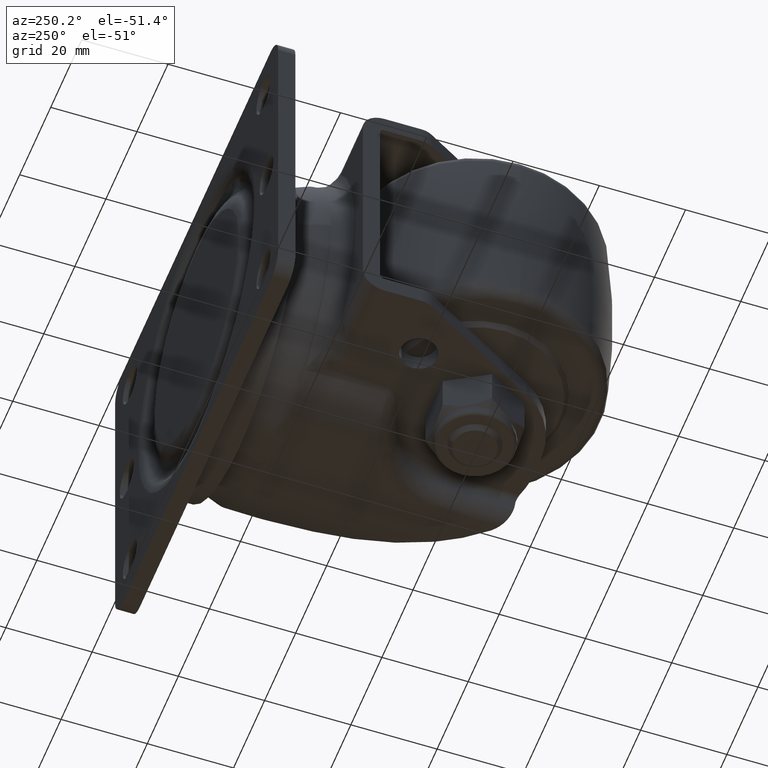
[diagram: clean part render]
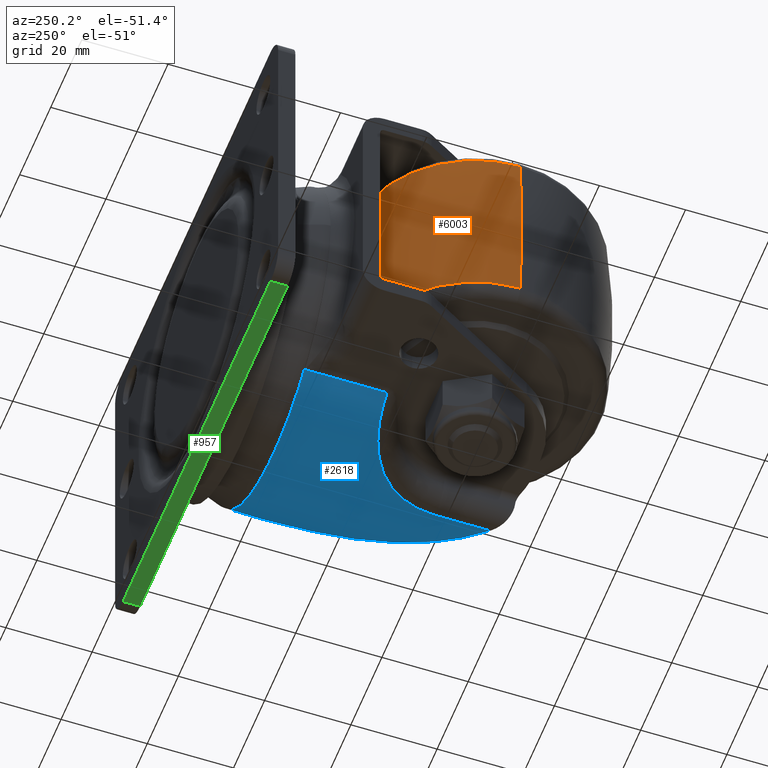
[diagram: same view with three faces highlighted in distinct colors, each labeled with its STEP entity id]
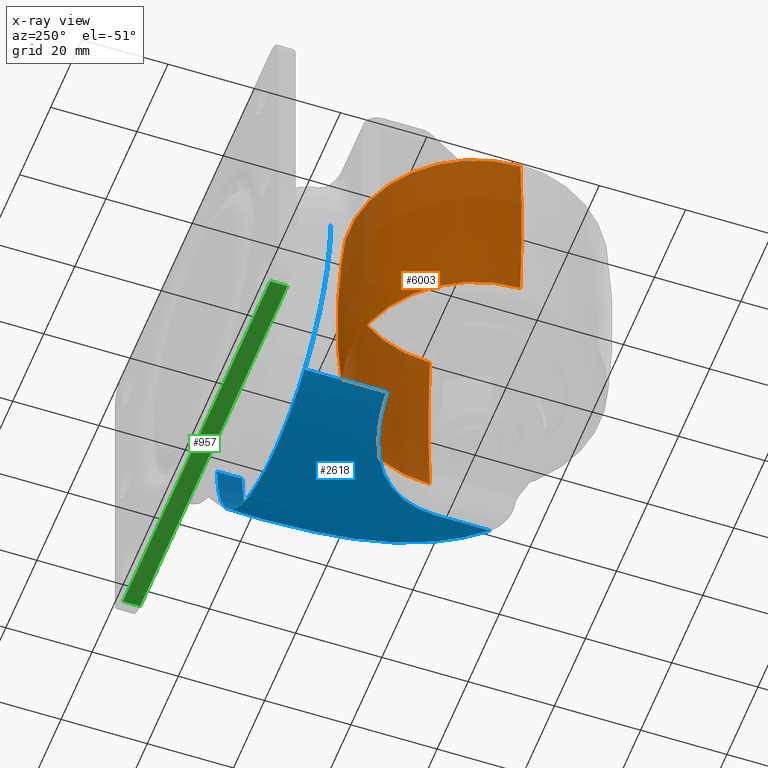
[diagram: x-ray of the same camera — body ghosted, the three highlighted faces saturated]
A machine part, auxiliary view with three faces highlighted in distinct colors.
The next image is the same camera in x-ray (body ghosted, the three faces saturated) — at least one of them is partly hidden behind the body in this view.
Their STEP definitions:

[orange] entity #6003 — the highlighted toroidal blend (fillet) surface has major radius 220 mm and minor (blend) radius 250 mm.
#67 = DIRECTION ( 'NONE',  ( 1.000000000000000000, 0.000000000000000000, 0.000000000000000000 ) ) ;
#163 = DIRECTION ( 'NONE',  ( 0.000000000000000000, 0.000000000000000000, 1.000000000000000000 ) ) ;
#311 = EDGE_CURVE ( 'NONE', #6330, #5345, #5548, .T. ) ;
#781 = AXIS2_PLACEMENT_3D ( 'NONE', #5704, #3207, #3275 ) ;
#887 = EDGE_CURVE ( 'NONE', #2490, #5345, #3988, .T. ) ;
#1644 = AXIS2_PLACEMENT_3D ( 'NONE', #3081, #163, #67 ) ;
#1677 = FACE_OUTER_BOUND ( 'NONE', #2428, .T. ) ;
#1829 = DIRECTION ( 'NONE',  ( -1.000000000000000000, 0.000000000000000000, 0.000000000000000000 ) ) ;
#1907 = DIRECTION ( 'NONE',  ( 0.000000000000000000, 0.000000000000000000, -1.000000000000000000 ) ) ;
#2025 = DIRECTION ( 'NONE',  ( 0.000000000000000000, -1.000000000000000000, 0.000000000000000000 ) ) ;
#2256 = DIRECTION ( 'NONE',  ( -1.224646799147353207E-16, 1.000000000000000000, 0.000000000000000000 ) ) ;
#2358 = CARTESIAN_POINT ( 'NONE',  ( -220.0000000000000000, -2.694222958124177046E-14, 0.000000000000000000 ) ) ;
#2428 = EDGE_LOOP ( 'NONE', ( #4022, #2977, #3820, #5814 ) ) ;
#2490 = VERTEX_POINT ( 'NONE', #3921 ) ;
#2574 = AXIS2_PLACEMENT_3D ( 'NONE', #2358, #2256, #4275 ) ;
#2583 = TOROIDAL_SURFACE ( 'NONE', #781, -220.0000000000000000, 250.0000000000000000 ) ;
#2650 = CARTESIAN_POINT ( 'NONE',  ( -29.09480603460475834, 0.000000000000000000, -21.25506072874494023 ) ) ;
#2794 = DIRECTION ( 'NONE',  ( -0.000000000000000000, -0.000000000000000000, -1.000000000000000000 ) ) ;
#2804 = VERTEX_POINT ( 'NONE', #5068 ) ;
#2977 = ORIENTED_EDGE ( 'NONE', *, *, #5455, .T. ) ;
#3081 = CARTESIAN_POINT ( 'NONE',  ( 0.000000000000000000, 0.000000000000000000, -21.25506072874494023 ) ) ;
#3207 = DIRECTION ( 'NONE',  ( -0.000000000000000000, -0.000000000000000000, -1.000000000000000000 ) ) ;
#3275 = DIRECTION ( 'NONE',  ( -1.000000000000000000, 0.000000000000000000, 0.000000000000000000 ) ) ;
#3820 = ORIENTED_EDGE ( 'NONE', *, *, #887, .T. ) ;
#3921 = CARTESIAN_POINT ( 'NONE',  ( 29.09480603460475834, 3.563086108209180818E-15, -21.25506072874494023 ) ) ;
#3988 = CIRCLE ( 'NONE', #1644, 29.09480603460475834 ) ;
#4022 = ORIENTED_EDGE ( 'NONE', *, *, #4072, .T. ) ;
#4072 = EDGE_CURVE ( 'NONE', #6330, #2804, #5085, .T. ) ;
#4178 = AXIS2_PLACEMENT_3D ( 'NONE', #4547, #2025, #1907 ) ;
#4239 = CARTESIAN_POINT ( 'NONE',  ( 0.000000000000000000, 0.000000000000000000, 21.25506072874493313 ) ) ;
#4275 = DIRECTION ( 'NONE',  ( -1.000000000000000000, -1.224646799147353207E-16, 0.000000000000000000 ) ) ;
#4547 = CARTESIAN_POINT ( 'NONE',  ( 220.0000000000000000, 0.000000000000000000, 0.000000000000000000 ) ) ;
#4587 = CIRCLE ( 'NONE', #2574, 249.9999999999999716 ) ;
#5068 = CARTESIAN_POINT ( 'NONE',  ( 29.09480603460475834, 3.563086108209180818E-15, 21.25506072874493313 ) ) ;
#5085 = CIRCLE ( 'NONE', #6235, 29.09480603460475834 ) ;
#5345 = VERTEX_POINT ( 'NONE', #2650 ) ;
#5455 = EDGE_CURVE ( 'NONE', #2804, #2490, #4587, .T. ) ;
#5548 = CIRCLE ( 'NONE', #4178, 250.0000000000000000 ) ;
#5704 = CARTESIAN_POINT ( 'NONE',  ( 0.000000000000000000, 0.000000000000000000, 0.000000000000000000 ) ) ;
#5814 = ORIENTED_EDGE ( 'NONE', *, *, #311, .F. ) ;
#5928 = CARTESIAN_POINT ( 'NONE',  ( -29.09480603460475834, 0.000000000000000000, 21.25506072874493313 ) ) ;
#6003 = ADVANCED_FACE ( 'NONE', ( #1677 ), #2583, .T. ) ;
#6235 = AXIS2_PLACEMENT_3D ( 'NONE', #4239, #2794, #1829 ) ;
#6330 = VERTEX_POINT ( 'NONE', #5928 ) ;

[blue] entity #2618 — the highlighted cylindrical surface (partial cylindrical patch) has radius 36.5 mm, axis along (-0, 1, -0).
#6 = CARTESIAN_POINT ( 'NONE',  ( 16.07858031296348145, 16.19666993373619590, -36.17268620276519897 ) ) ;
#20 = CIRCLE ( 'NONE', #3738, 36.50000000000000000 ) ;
#50 = CARTESIAN_POINT ( 'NONE',  ( 12.06962302102269469, 18.21111297559775721, -35.39790985149323888 ) ) ;
#79 = CARTESIAN_POINT ( 'NONE',  ( 53.30953679748899532, 33.29999999999999716, -17.00291570472260716 ) ) ;
#111 = CARTESIAN_POINT ( 'NONE',  ( 50.18746741257247379, 31.87541190361276833, -21.92012474138014966 ) ) ;
#291 = CARTESIAN_POINT ( 'NONE',  ( 53.69584931707314723, 33.29999999999999716, -16.22440869293081178 ) ) ;
#489 = CARTESIAN_POINT ( 'NONE',  ( 24.03577236283230079, 7.339083166733948893, -36.37468791609519769 ) ) ;
#519 = CARTESIAN_POINT ( 'NONE',  ( 25.63492063492064688, -12.70819972062991354, -36.20452334595756838 ) ) ;
#543 = CARTESIAN_POINT ( 'NONE',  ( 1.167719516289254855, 19.96886560162768731, -30.64197530864198527 ) ) ;
#553 = EDGE_CURVE ( 'NONE', #1093, #5749, #6277, .T. ) ;
#581 = CARTESIAN_POINT ( 'NONE',  ( 1.807776813859736764, 19.99972335466754458, -31.05623697823753204 ) ) ;
#608 = CARTESIAN_POINT ( 'NONE',  ( 51.34719766610444935, 32.72249436255683008, -20.28469685255298671 ) ) ;
#615 = CARTESIAN_POINT ( 'NONE',  ( 28.60772840384019133, -9.725358821918458574, -35.70613684958612311 ) ) ;
#673 = CARTESIAN_POINT ( 'NONE',  ( 48.79502898514481757, 29.29093898609247404, -23.65769142826410842 ) ) ;
#680 = CARTESIAN_POINT ( 'NONE',  ( 21.00000000000002487, 39.13393125268151351, 0.000000000000000000 ) ) ;
#753 = VERTEX_POINT ( 'NONE', #3022 ) ;
#798 = ORIENTED_EDGE ( 'NONE', *, *, #5674, .T. ) ;
#866 = CYLINDRICAL_SURFACE ( 'NONE', #4374, 36.50000000000000000 ) ;
#910 = CARTESIAN_POINT ( 'NONE',  ( 25.63492063492064688, -12.70819972062991354, -36.20452334595756838 ) ) ;
#971 = CARTESIAN_POINT ( 'NONE',  ( 22.60528691535320434, 9.994002002163488996, -36.47210162612018536 ) ) ;
#1007 = CARTESIAN_POINT ( 'NONE',  ( 17.92547641667669822, 14.91090828230018950, -36.37542169643199941 ) ) ;
#1066 = B_SPLINE_CURVE_WITH_KNOTS ( 'NONE', 3,
 ( #6022, #2508, #5506, #2533, #3097, #489, #2006, #971, #3003, #4532, #1510, #3539, #1007, #3036, #6, #2073, #2609, #5109, #5074, #4100, #50, #2037, #5577, #4066, #2571, #6090, #1579, #4591, #1080, #3069, #581, #543 ),
 .UNSPECIFIED., .F., .F.,
 ( 4, 2, 2, 2, 2, 2, 2, 2, 2, 2, 2, 2, 2, 2, 2, 4 ),
 ( -4.315124646492307647E-16, 0.004507232521810474943, 0.006760848782715928387, 0.009014465043621381832, 0.01352169756543228699, 0.01577531382633774737, 0.01802893008724320775, 0.02028254634814867161, 0.02140935447860140700, 0.02253616260905414587, 0.02478977886995961666, 0.02704339513086508745, 0.02929701139177056518, 0.03155062765267603597, 0.03380424391358151370, 0.03605786017448699143 ),
 .UNSPECIFIED. ) ;
#1080 = CARTESIAN_POINT ( 'NONE',  ( 3.785973885334423361, 19.97542536621987708, -32.19477468876621629 ) ) ;
#1093 = VERTEX_POINT ( 'NONE', #2327 ) ;
#1108 = CARTESIAN_POINT ( 'NONE',  ( 50.87938046682000248, 32.44030484143362258, -20.96768836816792003 ) ) ;
#1113 = CARTESIAN_POINT ( 'NONE',  ( 25.63492063492063266, 1.734723475976806897E-15, -36.20452334595757549 ) ) ;
#1135 = CARTESIAN_POINT ( 'NONE',  ( 49.96087227749997339, 31.64152930888657167, -22.21785788739545708 ) ) ;
#1251 = DIRECTION ( 'NONE',  ( -1.000000000000000000, -1.901066822988281703E-16, 0.000000000000000000 ) ) ;
#1300 = ORIENTED_EDGE ( 'NONE', *, *, #4325, .T. ) ;
#1302 = AXIS2_PLACEMENT_3D ( 'NONE', #680, #2703, #6066 ) ;
#1309 = DIRECTION ( 'NONE',  ( -1.067522139062650302E-16, 1.000000000000000000, -0.000000000000000000 ) ) ;
#1391 = CARTESIAN_POINT ( 'NONE',  ( 21.00000000000002487, 47.00000000000001421, 0.000000000000000000 ) ) ;
#1457 = EDGE_CURVE ( 'NONE', #4631, #4579, #1875, .T. ) ;
#1460 = B_SPLINE_CURVE_WITH_KNOTS ( 'NONE', 3,
 ( #2603, #79, #2100, #4125, #3191, #2633, #608, #1108, #3133, #111, #1135, #5201, #5140, #1637, #4652, #6150, #5666, #673 ),
 .UNSPECIFIED., .F., .F.,
 ( 4, 2, 2, 2, 2, 2, 2, 2, 4 ),
 ( 0.000000000000000000, 0.002576954735836691282, 0.003865432103755038224, 0.005153909471673385166, 0.006442386839591731675, 0.007730864207510078183, 0.008375102891469253172, 0.009019341575428425559, 0.01030781894334676513 ),
 .UNSPECIFIED. ) ;
#1469 = CARTESIAN_POINT ( 'NONE',  ( 25.63492063492063622, 47.00000000000001421, -36.20452334595757549 ) ) ;
#1501 = LINE ( 'NONE', #1538, #1854 ) ;
#1504 = VECTOR ( 'NONE', #1933, 1000.000000000000000 ) ;
#1510 = CARTESIAN_POINT ( 'NONE',  ( 19.63971142996318164, 13.44154686158028689, -36.47901109859277113 ) ) ;
#1538 = CARTESIAN_POINT ( 'NONE',  ( 57.50000000000002132, 47.00000000000002132, 4.469960816887838430E-15 ) ) ;
#1550 = CARTESIAN_POINT ( 'NONE',  ( 41.01667666055415395, 7.572860893772414670, -30.52719112016119496 ) ) ;
#1579 = CARTESIAN_POINT ( 'NONE',  ( 5.811441891554891548, 19.79855210098747520, -33.19825351975956096 ) ) ;
#1581 = CARTESIAN_POINT ( 'NONE',  ( 26.39660164891946081, -11.98076417964255747, -36.10701257319374946 ) ) ;
#1592 = DIRECTION ( 'NONE',  ( 0.000000000000000000, 0.000000000000000000, 1.000000000000000000 ) ) ;
#1603 = EDGE_CURVE ( 'NONE', #6266, #4631, #3674, .T. ) ;
#1637 = CARTESIAN_POINT ( 'NONE',  ( 49.35485558805620343, 30.78769309663260145, -22.98424513611024977 ) ) ;
#1780 = ORIENTED_EDGE ( 'NONE', *, *, #1603, .T. ) ;
#1854 = VECTOR ( 'NONE', #3056, 1000.000000000000000 ) ;
#1875 = LINE ( 'NONE', #1469, #1504 ) ;
#1933 = DIRECTION ( 'NONE',  ( -1.067522139062650302E-16, 1.000000000000000000, -0.000000000000000000 ) ) ;
#1976 = DIRECTION ( 'NONE',  ( 0.000000000000000000, 0.000000000000000000, 1.000000000000000000 ) ) ;
#2006 = CARTESIAN_POINT ( 'NONE',  ( 23.70645461037356938, 8.020894739722374212, -36.40137894666422369 ) ) ;
#2037 = CARTESIAN_POINT ( 'NONE',  ( 10.68692833488053040, 18.70861924616589889, -35.02005436419537432 ) ) ;
#2073 = CARTESIAN_POINT ( 'NONE',  ( 15.10243467848263421, 16.76543191092683571, -36.02189782609117685 ) ) ;
#2100 = CARTESIAN_POINT ( 'NONE',  ( 52.89902604063043867, 33.25615121917020645, -17.76029490189498006 ) ) ;
#2107 = CARTESIAN_POINT ( 'NONE',  ( 36.41282993759234898, -0.2025505132891498306, -33.19163316727893687 ) ) ;
#2327 = CARTESIAN_POINT ( 'NONE',  ( 1.167719516289256187, 39.00000000000000711, -30.64197530864197461 ) ) ;
#2407 = CARTESIAN_POINT ( 'NONE',  ( 57.50000000000002132, 39.13393125268152062, 4.469960816887838430E-15 ) ) ;
#2415 = LINE ( 'NONE', #6317, #5936 ) ;
#2422 = EDGE_CURVE ( 'NONE', #3480, #5776, #20, .T. ) ;
#2508 = CARTESIAN_POINT ( 'NONE',  ( 25.63492063492063622, 1.531641122210424699, -36.20452334595758259 ) ) ;
#2533 = CARTESIAN_POINT ( 'NONE',  ( 24.85313901026912475, 5.204716396435643766, -36.29657355336085800 ) ) ;
#2571 = CARTESIAN_POINT ( 'NONE',  ( 7.882445857712385262, 19.45447168944217964, -34.06963296932361374 ) ) ;
#2577 = CARTESIAN_POINT ( 'NONE',  ( 46.19751306476837982, 19.53351494831332857, -26.42340825800680548 ) ) ;
#2603 = CARTESIAN_POINT ( 'NONE',  ( 53.69584931707314723, 33.29999999999999716, -16.22440869293081178 ) ) ;
#2609 = CARTESIAN_POINT ( 'NONE',  ( 14.77093277616562084, 16.94812180091045661, -35.96614688657270165 ) ) ;
#2618 = ADVANCED_FACE ( 'NONE', ( #5393 ), #866, .T. ) ;
#2633 = CARTESIAN_POINT ( 'NONE',  ( 51.57847989220285001, 32.83611078996376165, -19.93449076481004667 ) ) ;
#2641 = CARTESIAN_POINT ( 'NONE',  ( 27.14346039106558450, -11.23873619867194584, -35.98699257525387907 ) ) ;
#2703 = DIRECTION ( 'NONE',  ( 1.067522139062650302E-16, -1.000000000000000000, 0.000000000000000000 ) ) ;
#2904 = EDGE_CURVE ( 'NONE', #4579, #753, #1066, .T. ) ;
#3003 = CARTESIAN_POINT ( 'NONE',  ( 21.72146836301139317, 11.21375545360814030, -36.50730376989539394 ) ) ;
#3008 = CARTESIAN_POINT ( 'NONE',  ( 29.32015608024729048, -8.959133157953475646, -35.54624660892186938 ) ) ;
#3022 = CARTESIAN_POINT ( 'NONE',  ( 1.167719516289254855, 19.96886560162768731, -30.64197530864198527 ) ) ;
#3036 = CARTESIAN_POINT ( 'NONE',  ( 16.70860990725080697, 15.78812464384968983, -36.25200642625897274 ) ) ;
#3056 = DIRECTION ( 'NONE',  ( -1.067522139062650302E-16, 1.000000000000000000, -0.000000000000000000 ) ) ;
#3069 = CARTESIAN_POINT ( 'NONE',  ( 2.462334445402758032, 20.00816053575170272, -31.45125066070836439 ) ) ;
#3072 = CARTESIAN_POINT ( 'NONE',  ( 44.06446822575227174, 13.92223099869608660, -28.30860980257814319 ) ) ;
#3097 = CARTESIAN_POINT ( 'NONE',  ( 24.61245079619501652, 5.922911999084383261, -36.32194975599919218 ) ) ;
#3133 = CARTESIAN_POINT ( 'NONE',  ( 50.64621303603940561, 32.27391902556232139, -21.29559051210868503 ) ) ;
#3140 = CARTESIAN_POINT ( 'NONE',  ( 48.38887402146769290, 27.28224568424601060, -24.13487615366715744 ) ) ;
#3191 = CARTESIAN_POINT ( 'NONE',  ( 52.03028425264379564, 33.02074648719389671, -19.22365245655147348 ) ) ;
#3270 = CARTESIAN_POINT ( 'NONE',  ( -15.49999999999997158, 39.00000000000000711, 0.000000000000000000 ) ) ;
#3480 = VERTEX_POINT ( 'NONE', #6260 ) ;
#3485 = ORIENTED_EDGE ( 'NONE', *, *, #1457, .T. ) ;
#3493 = ORIENTED_EDGE ( 'NONE', *, *, #3812, .T. ) ;
#3539 = CARTESIAN_POINT ( 'NONE',  ( 18.51232439154448528, 14.44224976389465454, -36.41950172355633697 ) ) ;
#3571 = CARTESIAN_POINT ( 'NONE',  ( 42.81847298304587923, 11.17606634292755174, -29.26565406002294978 ) ) ;
#3642 = EDGE_CURVE ( 'NONE', #5776, #6266, #1460, .T. ) ;
#3674 = B_SPLINE_CURVE_WITH_KNOTS ( 'NONE', 3,
 ( #5609, #3140, #4132, #4560, #2577, #5580, #3072, #3571, #4102, #5145, #1550, #5076, #2107, #5113, #6123, #3008, #615, #2641, #1581, #519 ),
 .UNSPECIFIED., .F., .F.,
 ( 4, 2, 2, 2, 2, 2, 2, 2, 2, 4 ),
 ( 0.004119566573179632082, 0.01039664410632155922, 0.01667372163946348809, 0.02295079917260542390, 0.02608933793917639354, 0.02922787670574735625, 0.04178203177203120011, 0.04805910930517311858, 0.05119764807174408128, 0.05433618683831503704 ),
 .UNSPECIFIED. ) ;
#3712 = ORIENTED_EDGE ( 'NONE', *, *, #2422, .T. ) ;
#3738 = AXIS2_PLACEMENT_3D ( 'NONE', #3759, #6232, #1592 ) ;
#3759 = CARTESIAN_POINT ( 'NONE',  ( 21.00000000000002487, 33.29999999999999716, 0.000000000000000000 ) ) ;
#3812 = EDGE_CURVE ( 'NONE', #5749, #5352, #5498, .T. ) ;
#3869 = CARTESIAN_POINT ( 'NONE',  ( 48.79502898514481757, 29.29093898609247404, -23.65769142826410842 ) ) ;
#4011 = EDGE_LOOP ( 'NONE', ( #5339, #3712, #5583, #1780, #3485, #4793, #1300, #5771, #3493, #798 ) ) ;
#4058 = DIRECTION ( 'NONE',  ( -1.067522139062650302E-16, 1.000000000000000000, -0.000000000000000000 ) ) ;
#4066 = CARTESIAN_POINT ( 'NONE',  ( 8.584544276824704667, 19.29939026671445390, -34.33153530499748030 ) ) ;
#4100 = CARTESIAN_POINT ( 'NONE',  ( 12.75393404274660725, 17.93101862726908635, -35.56304050298253117 ) ) ;
#4102 = CARTESIAN_POINT ( 'NONE',  ( 42.38405216567437606, 10.26466954844706514, -29.58504014190465270 ) ) ;
#4125 = CARTESIAN_POINT ( 'NONE',  ( 52.25143854845115499, 33.09200042693857569, -18.86210680141945417 ) ) ;
#4132 = CARTESIAN_POINT ( 'NONE',  ( 47.91070899777739101, 25.31323297205538481, -24.67166747252329273 ) ) ;
#4174 = CARTESIAN_POINT ( 'NONE',  ( -15.49999999999997158, 39.13393125268150641, 0.000000000000000000 ) ) ;
#4325 = EDGE_CURVE ( 'NONE', #753, #1093, #2415, .T. ) ;
#4374 = AXIS2_PLACEMENT_3D ( 'NONE', #1391, #5818, #1251 ) ;
#4387 = CIRCLE ( 'NONE', #1302, 36.50000000000000000 ) ;
#4532 = CARTESIAN_POINT ( 'NONE',  ( 20.18174078651000869, 12.90789774978626703, -36.49443639989660682 ) ) ;
#4560 = CARTESIAN_POINT ( 'NONE',  ( 46.81504895049177151, 21.43885140310576176, -25.81589979686035008 ) ) ;
#4579 = VERTEX_POINT ( 'NONE', #1113 ) ;
#4591 = CARTESIAN_POINT ( 'NONE',  ( 4.455977605711819223, 19.93440386077508819, -32.54399571646254685 ) ) ;
#4631 = VERTEX_POINT ( 'NONE', #910 ) ;
#4652 = CARTESIAN_POINT ( 'NONE',  ( 49.26349456612238242, 30.62208570878884473, -23.09636643748376983 ) ) ;
#4671 = VERTEX_POINT ( 'NONE', #2407 ) ;
#4793 = ORIENTED_EDGE ( 'NONE', *, *, #2904, .T. ) ;
#5009 = CARTESIAN_POINT ( 'NONE',  ( -15.49999999999997158, 47.00000000000000711, 0.000000000000000000 ) ) ;
#5066 = DIRECTION ( 'NONE',  ( 0.000000000000000000, 1.000000000000000000, 0.000000000000000000 ) ) ;
#5074 = CARTESIAN_POINT ( 'NONE',  ( 13.76786745085171404, 17.46081166500499648, -35.77800472620834427 ) ) ;
#5076 = CARTESIAN_POINT ( 'NONE',  ( 38.60234457983469980, 3.168377486662871778, -32.05675187558943406 ) ) ;
#5101 = CARTESIAN_POINT ( 'NONE',  ( 21.00000000000002487, 39.00000000000000711, 0.000000000000000000 ) ) ;
#5109 = CARTESIAN_POINT ( 'NONE',  ( 14.10375166840598915, 17.29571846457239914, -35.84420119481752209 ) ) ;
#5113 = CARTESIAN_POINT ( 'NONE',  ( 32.70469715064478322, -5.053759677957583740, -34.59765200646970840 ) ) ;
#5140 = CARTESIAN_POINT ( 'NONE',  ( 49.54634550561052464, 31.09543585457707238, -22.74597806581726189 ) ) ;
#5145 = CARTESIAN_POINT ( 'NONE',  ( 41.48326216303769343, 8.463394358545208718, -30.21569556344286411 ) ) ;
#5201 = CARTESIAN_POINT ( 'NONE',  ( 49.64705727461254270, 31.23874988710834799, -22.61912780258364464 ) ) ;
#5339 = ORIENTED_EDGE ( 'NONE', *, *, #6427, .F. ) ;
#5352 = VERTEX_POINT ( 'NONE', #4174 ) ;
#5393 = FACE_OUTER_BOUND ( 'NONE', #4011, .T. ) ;
#5498 = LINE ( 'NONE', #5009, #6445 ) ;
#5506 = CARTESIAN_POINT ( 'NONE',  ( 25.43382072074257749, 3.023069091001444164, -36.23179489901494321 ) ) ;
#5551 = AXIS2_PLACEMENT_3D ( 'NONE', #5101, #5066, #1976 ) ;
#5577 = CARTESIAN_POINT ( 'NONE',  ( 9.986578972604998938, 18.92649681645885451, -34.80664325219752442 ) ) ;
#5580 = CARTESIAN_POINT ( 'NONE',  ( 44.82222641096678473, 15.77518713203070888, -27.66970721643278708 ) ) ;
#5583 = ORIENTED_EDGE ( 'NONE', *, *, #3642, .T. ) ;
#5609 = CARTESIAN_POINT ( 'NONE',  ( 48.79502898514481757, 29.29093898609247404, -23.65769142826410842 ) ) ;
#5666 = CARTESIAN_POINT ( 'NONE',  ( 48.88031096054604774, 29.71271231912225019, -23.55749505088826368 ) ) ;
#5674 = EDGE_CURVE ( 'NONE', #5352, #4671, #4387, .T. ) ;
#5749 = VERTEX_POINT ( 'NONE', #3270 ) ;
#5771 = ORIENTED_EDGE ( 'NONE', *, *, #553, .T. ) ;
#5776 = VERTEX_POINT ( 'NONE', #291 ) ;
#5818 = DIRECTION ( 'NONE',  ( -1.067522139062650302E-16, 1.000000000000000000, -0.000000000000000000 ) ) ;
#5936 = VECTOR ( 'NONE', #1309, 1000.000000000000000 ) ;
#6022 = CARTESIAN_POINT ( 'NONE',  ( 25.63492063492063266, 1.734723475976806897E-15, -36.20452334595757549 ) ) ;
#6066 = DIRECTION ( 'NONE',  ( 1.000000000000000000, 1.901066822988281703E-16, 0.000000000000000000 ) ) ;
#6090 = CARTESIAN_POINT ( 'NONE',  ( 6.496904986151949224, 19.70373827894285412, -33.50328867976342906 ) ) ;
#6123 = CARTESIAN_POINT ( 'NONE',  ( 31.39755829538299636, -6.636330508763381708, -35.01690109392857408 ) ) ;
#6150 = CARTESIAN_POINT ( 'NONE',  ( 49.01294546472991698, 30.09494128557396664, -23.40072557005628084 ) ) ;
#6232 = DIRECTION ( 'NONE',  ( -0.000000000000000000, 1.000000000000000000, 0.000000000000000000 ) ) ;
#6260 = CARTESIAN_POINT ( 'NONE',  ( 57.50000000000002132, 33.29999999999999716, 4.469960816887838430E-15 ) ) ;
#6266 = VERTEX_POINT ( 'NONE', #3869 ) ;
#6277 = CIRCLE ( 'NONE', #5551, 36.50000000000000000 ) ;
#6317 = CARTESIAN_POINT ( 'NONE',  ( 1.167719516289251969, 47.00000000000001421, -30.64197530864198527 ) ) ;
#6427 = EDGE_CURVE ( 'NONE', #3480, #4671, #1501, .T. ) ;
#6445 = VECTOR ( 'NONE', #4058, 1000.000000000000000 ) ;

[green] entity #957 — the highlighted planar face has unit normal (0, 0, -1).
#32 = VECTOR ( 'NONE', #5816, 1000.000000000000000 ) ;
#232 = VECTOR ( 'NONE', #855, 1000.000000000000000 ) ;
#435 = DIRECTION ( 'NONE',  ( -1.000000000000000000, -0.000000000000000000, -0.000000000000000000 ) ) ;
#626 = PLANE ( 'NONE',  #2704 ) ;
#742 = CARTESIAN_POINT ( 'NONE',  ( -26.49999999999997868, 57.00000000000000000, -40.00000000000000711 ) ) ;
#855 = DIRECTION ( 'NONE',  ( 0.000000000000000000, 1.000000000000000000, 0.000000000000000000 ) ) ;
#899 = CARTESIAN_POINT ( 'NONE',  ( -31.49999999999997868, 57.00000000000000000, -40.00000000000000711 ) ) ;
#957 = ADVANCED_FACE ( 'NONE', ( #3120 ), #626, .T. ) ;
#1152 = CARTESIAN_POINT ( 'NONE',  ( -31.49999999999997868, 53.00000000000000711, -40.00000000000000711 ) ) ;
#1169 = LINE ( 'NONE', #2669, #1621 ) ;
#1210 = VERTEX_POINT ( 'NONE', #5868 ) ;
#1621 = VECTOR ( 'NONE', #6187, 1000.000000000000000 ) ;
#1629 = ORIENTED_EDGE ( 'NONE', *, *, #4353, .T. ) ;
#2117 = DIRECTION ( 'NONE',  ( 0.000000000000000000, 0.000000000000000000, -1.000000000000000000 ) ) ;
#2426 = LINE ( 'NONE', #899, #3420 ) ;
#2442 = VERTEX_POINT ( 'NONE', #3253 ) ;
#2669 = CARTESIAN_POINT ( 'NONE',  ( -31.49999999999997868, 53.00000000000000711, -40.00000000000000711 ) ) ;
#2704 = AXIS2_PLACEMENT_3D ( 'NONE', #1152, #2117, #3178 ) ;
#3120 = FACE_OUTER_BOUND ( 'NONE', #5311, .T. ) ;
#3178 = DIRECTION ( 'NONE',  ( -1.000000000000000000, 0.000000000000000000, -0.000000000000000000 ) ) ;
#3253 = CARTESIAN_POINT ( 'NONE',  ( 68.50000000000000000, 57.00000000000000000, -40.00000000000000711 ) ) ;
#3266 = EDGE_CURVE ( 'NONE', #2442, #4534, #2426, .T. ) ;
#3285 = LINE ( 'NONE', #5283, #32 ) ;
#3420 = VECTOR ( 'NONE', #435, 1000.000000000000000 ) ;
#3941 = CARTESIAN_POINT ( 'NONE',  ( -26.49999999999997868, 53.00000000000000711, -40.00000000000000711 ) ) ;
#4036 = VERTEX_POINT ( 'NONE', #4207 ) ;
#4207 = CARTESIAN_POINT ( 'NONE',  ( 68.50000000000000000, 53.00000000000000711, -40.00000000000000711 ) ) ;
#4353 = EDGE_CURVE ( 'NONE', #1210, #4534, #4406, .T. ) ;
#4406 = LINE ( 'NONE', #3941, #232 ) ;
#4466 = ORIENTED_EDGE ( 'NONE', *, *, #5478, .T. ) ;
#4534 = VERTEX_POINT ( 'NONE', #742 ) ;
#4638 = ORIENTED_EDGE ( 'NONE', *, *, #5645, .T. ) ;
#5283 = CARTESIAN_POINT ( 'NONE',  ( 68.50000000000000000, 53.00000000000000711, -40.00000000000000711 ) ) ;
#5311 = EDGE_LOOP ( 'NONE', ( #4638, #1629, #6456, #4466 ) ) ;
#5478 = EDGE_CURVE ( 'NONE', #2442, #4036, #3285, .T. ) ;
#5645 = EDGE_CURVE ( 'NONE', #4036, #1210, #1169, .T. ) ;
#5816 = DIRECTION ( 'NONE',  ( -0.000000000000000000, -1.000000000000000000, -0.000000000000000000 ) ) ;
#5868 = CARTESIAN_POINT ( 'NONE',  ( -26.49999999999997868, 53.00000000000000711, -40.00000000000000711 ) ) ;
#6187 = DIRECTION ( 'NONE',  ( -1.000000000000000000, -0.000000000000000000, -0.000000000000000000 ) ) ;
#6456 = ORIENTED_EDGE ( 'NONE', *, *, #3266, .F. ) ;